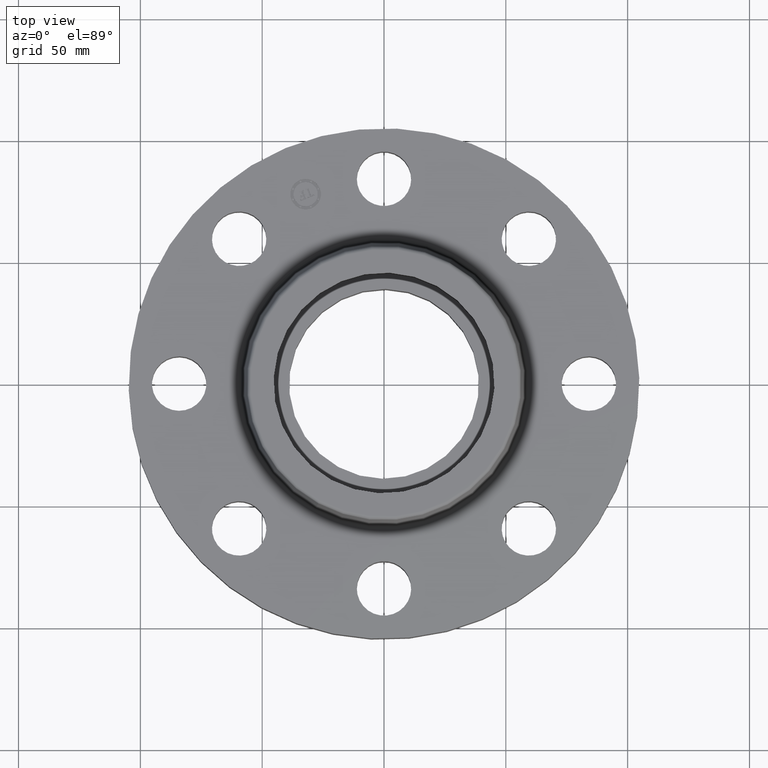
[diagram: clean part render]
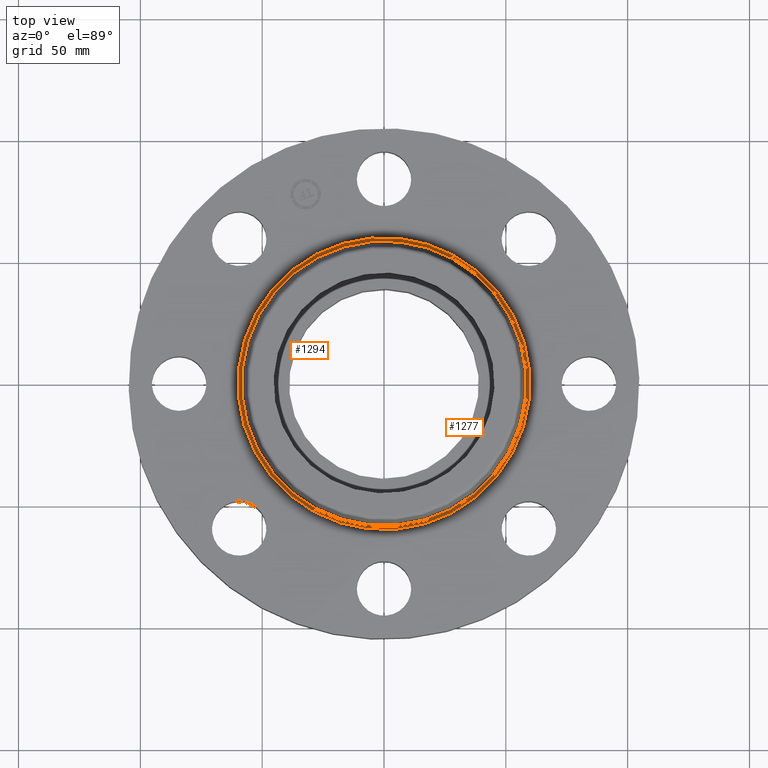
[diagram: same view with one multi-face feature highlighted, each face labeled with its STEP entity id]
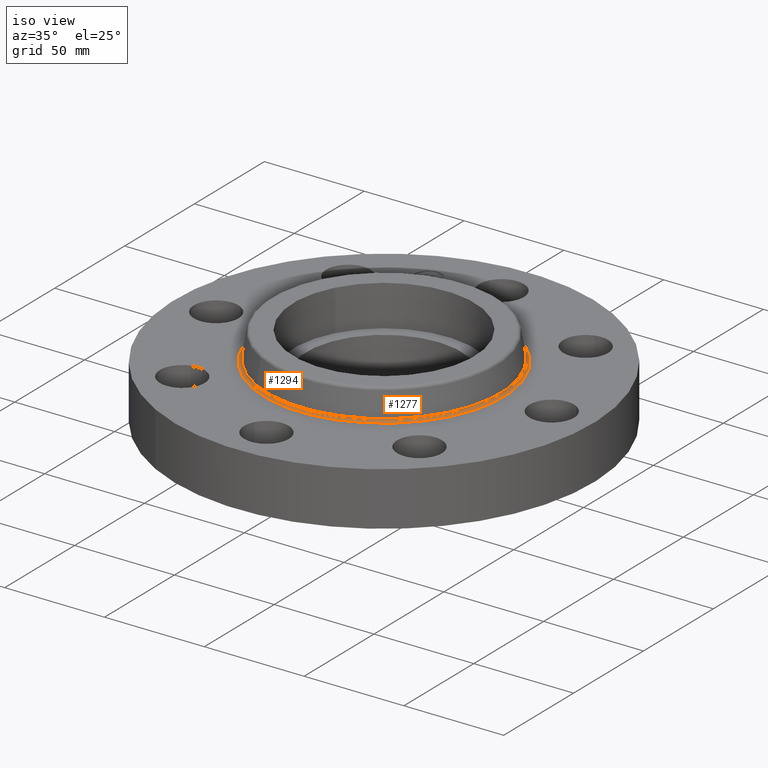
[diagram: same view with one multi-face feature highlighted, each face labeled with its STEP entity id]
A machine part, top view. The highlighted faces form ONE feature: a constant-radius fillet chain: 2 tangent blend faces with common blend radius 1.524 mm. The faces share edges in the B-rep.
A second angle (iso view) of the same feature is appended — it is thin or edge-on in the first view.
Their STEP definitions:
[1] entity #1277 (Torus):
#1241=AXIS2_PLACEMENT_3D('Torus Axis2P3D',#1238,#1239,#1240) ;
#1245=AXIS2_PLACEMENT_3D('Circle Axis2P3D',#1243,#1244,$) ;
#1254=AXIS2_PLACEMENT_3D('Circle Axis2P3D',#1252,#1253,$) ;
#1261=AXIS2_PLACEMENT_3D('Circle Axis2P3D',#1259,#1260,$) ;
#1268=AXIS2_PLACEMENT_3D('Circle Axis2P3D',#1266,#1267,$) ;
#1238=CARTESIAN_POINT('Axis2P3D Location',(0.,0.,1.12)) ;
#1243=CARTESIAN_POINT('Axis2P3D Location',(0.,0.,1.06)) ;
#1247=CARTESIAN_POINT('Vertex',(1.13161014174,2.07139847022,1.06)) ;
#1249=CARTESIAN_POINT('Vertex',(-1.13161014174,-2.07139847022,1.06)) ;
#1252=CARTESIAN_POINT('Axis2P3D Location',(1.13161014174,2.07139847022,1.12)) ;
#1256=CARTESIAN_POINT('Vertex',(1.10328162249,2.01954346356,1.10958110934)) ;
#1259=CARTESIAN_POINT('Axis2P3D Location',(0.,0.,1.10958110934)) ;
#1263=CARTESIAN_POINT('Vertex',(-1.10328162249,-2.01954346356,1.10958110934)) ;
#1266=CARTESIAN_POINT('Axis2P3D Location',(-1.13161014174,-2.07139847022,1.12)) ;
#1239=DIRECTION('Axis2P3D Direction',(0.,0.,-0.0393700787402)) ;
#1240=DIRECTION('Axis2P3D XDirection',(-0.0188750212049,-0.0345504945626,0.)) ;
#1244=DIRECTION('Axis2P3D Direction',(0.,0.,-0.0393700787402)) ;
#1253=DIRECTION('Axis2P3D Direction',(-0.0345504945626,0.0188750212049,0.)) ;
#1260=DIRECTION('Axis2P3D Direction',(0.,0.,-0.0393700787402)) ;
#1267=DIRECTION('Axis2P3D Direction',(0.0345504945626,-0.0188750212049,0.)) ;
#1272=ORIENTED_EDGE('',*,*,#1251,.F.) ;
#1273=ORIENTED_EDGE('',*,*,#1258,.T.) ;
#1274=ORIENTED_EDGE('',*,*,#1265,.T.) ;
#1275=ORIENTED_EDGE('',*,*,#1270,.F.) ;
#1277=ADVANCED_FACE('PartBody',(#1276),#1242,.F.) ;
#1246=CIRCLE('generated circle',#1245,2.36034597788) ;
#1255=CIRCLE('generated circle',#1254,0.0600000000002) ;
#1262=CIRCLE('generated circle',#1261,2.3012575127) ;
#1269=CIRCLE('generated circle',#1268,0.0600000000002) ;
#1242=TOROIDAL_SURFACE('homeo Torus',#1241,2.36034597788,0.0600000000002) ;
#1251=EDGE_CURVE('',#1248,#1250,#1246,.T.) ;
#1258=EDGE_CURVE('',#1248,#1257,#1255,.T.) ;
#1265=EDGE_CURVE('',#1257,#1264,#1262,.T.) ;
#1270=EDGE_CURVE('',#1250,#1264,#1269,.T.) ;
#1271=EDGE_LOOP('',(#1272,#1273,#1274,#1275)) ;
#1276=FACE_OUTER_BOUND('',#1271,.T.) ;
#1248=VERTEX_POINT('',#1247) ;
#1250=VERTEX_POINT('',#1249) ;
#1257=VERTEX_POINT('',#1256) ;
#1264=VERTEX_POINT('',#1263) ;
[2] entity #1294 (Torus):
#1241=AXIS2_PLACEMENT_3D('Torus Axis2P3D',#1238,#1239,#1240) ;
#1254=AXIS2_PLACEMENT_3D('Circle Axis2P3D',#1252,#1253,$) ;
#1268=AXIS2_PLACEMENT_3D('Circle Axis2P3D',#1266,#1267,$) ;
#1280=AXIS2_PLACEMENT_3D('Circle Axis2P3D',#1278,#1279,$) ;
#1285=AXIS2_PLACEMENT_3D('Circle Axis2P3D',#1283,#1284,$) ;
#1238=CARTESIAN_POINT('Axis2P3D Location',(0.,0.,1.12)) ;
#1247=CARTESIAN_POINT('Vertex',(1.13161014174,2.07139847022,1.06)) ;
#1249=CARTESIAN_POINT('Vertex',(-1.13161014174,-2.07139847022,1.06)) ;
#1252=CARTESIAN_POINT('Axis2P3D Location',(1.13161014174,2.07139847022,1.12)) ;
#1256=CARTESIAN_POINT('Vertex',(1.10328162249,2.01954346356,1.10958110934)) ;
#1263=CARTESIAN_POINT('Vertex',(-1.10328162249,-2.01954346356,1.10958110934)) ;
#1266=CARTESIAN_POINT('Axis2P3D Location',(-1.13161014174,-2.07139847022,1.12)) ;
#1278=CARTESIAN_POINT('Axis2P3D Location',(0.,0.,1.06)) ;
#1283=CARTESIAN_POINT('Axis2P3D Location',(0.,0.,1.10958110934)) ;
#1239=DIRECTION('Axis2P3D Direction',(0.,0.,-0.0393700787402)) ;
#1240=DIRECTION('Axis2P3D XDirection',(-0.0188750212049,-0.0345504945626,0.)) ;
#1253=DIRECTION('Axis2P3D Direction',(-0.0345504945626,0.0188750212049,0.)) ;
#1267=DIRECTION('Axis2P3D Direction',(0.0345504945626,-0.0188750212049,0.)) ;
#1279=DIRECTION('Axis2P3D Direction',(0.,0.,-0.0393700787402)) ;
#1284=DIRECTION('Axis2P3D Direction',(0.,0.,-0.0393700787402)) ;
#1289=ORIENTED_EDGE('',*,*,#1282,.F.) ;
#1290=ORIENTED_EDGE('',*,*,#1270,.T.) ;
#1291=ORIENTED_EDGE('',*,*,#1287,.T.) ;
#1292=ORIENTED_EDGE('',*,*,#1258,.F.) ;
#1294=ADVANCED_FACE('PartBody',(#1293),#1242,.F.) ;
#1255=CIRCLE('generated circle',#1254,0.0600000000002) ;
#1269=CIRCLE('generated circle',#1268,0.0600000000002) ;
#1281=CIRCLE('generated circle',#1280,2.36034597788) ;
#1286=CIRCLE('generated circle',#1285,2.3012575127) ;
#1242=TOROIDAL_SURFACE('homeo Torus',#1241,2.36034597788,0.0600000000002) ;
#1258=EDGE_CURVE('',#1248,#1257,#1255,.T.) ;
#1270=EDGE_CURVE('',#1250,#1264,#1269,.T.) ;
#1282=EDGE_CURVE('',#1250,#1248,#1281,.T.) ;
#1287=EDGE_CURVE('',#1264,#1257,#1286,.T.) ;
#1288=EDGE_LOOP('',(#1289,#1290,#1291,#1292)) ;
#1293=FACE_OUTER_BOUND('',#1288,.T.) ;
#1248=VERTEX_POINT('',#1247) ;
#1250=VERTEX_POINT('',#1249) ;
#1257=VERTEX_POINT('',#1256) ;
#1264=VERTEX_POINT('',#1263) ;